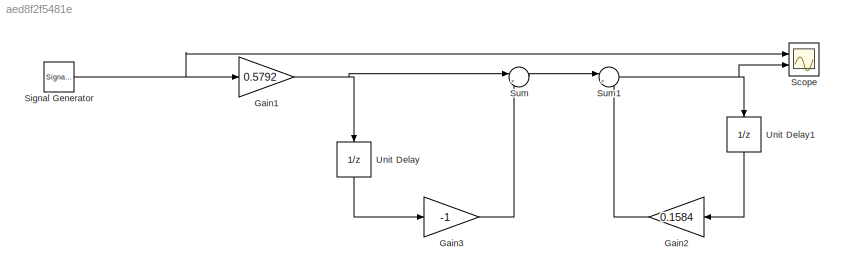
MODEL slx_aed8f2f5481e
KIND model
CONFIG AbsTol = auto
CONFIG EnableMultiTasking = off
CONFIG FixedStep = auto
CONFIG MaxStep = auto
CONFIG MinStep = auto
CONFIG RelTol = 1e-3
CONFIG SampleTimeConstraint = Unconstrained
CONFIG SolverName = VariableStepAuto
CONFIG StartTime = 0.0
CONFIG StopTime = 0.1
BLOCK [Gain] Gain1
  Gain = 0.5792
BLOCK [Gain] Gain2
  Gain = 0.1584
  NameLocation = top
BLOCK [Gain] Gain3
  Gain = -1
BLOCK [Scope] Scope
  Floating = off
  NumInputPorts = 2
  Ports = [2]
  ScopeSpecificationString = Simulink.scopes.TimeScopeBlockCfg('CurrentConfiguration', extmgr.ConfigurationSet(extmgr.Configuration('Core','General UI',true),extmgr.Configuration('Core','Source UI',true),extmgr.Configuration('Sources','WiredSimulink',true),extmgr.Configuration('Visuals','Time Domain',true,'SerializedDisplays',{struct('MinYLimReal','-0.03863','MaxYLimReal','0.34764','YLabelReal','','MinYLimMag','0.00000','MaxY...<+2010ch>
BLOCK [SignalGenerator] Signal Generator
  Frequency = 0.5
  NameLocation = top
  Ports = [0, 1]
BLOCK [Sum] Sum
  Inputs = |++
  Ports = [2, 1]
BLOCK [Sum] Sum1
  Inputs = |++
  Ports = [2, 1]
BLOCK [UnitDelay] Unit Delay
  HasFrameUpgradeWarning = on
  NameLocation = left
  SampleTime = -1
BLOCK [UnitDelay] Unit Delay1
  HasFrameUpgradeWarning = on
  NameLocation = left
  SampleTime = -1
NET Gain1:1 -> Sum:1, Unit Delay:1
LINE Gain2:1 -> Sum1:2
LINE Gain3:1 -> Sum:2
NET Signal Generator:1 -> Gain1:1, Scope:1
NET Sum1:1 -> Scope:2, Unit Delay1:1
LINE Sum:1 -> Sum1:1
LINE Unit Delay1:1 -> Gain2:1
LINE Unit Delay:1 -> Gain3:1
note: NET lines group one-source signal fan-out (src -> all destinations, sorted); 1:1 wires keep LINE
